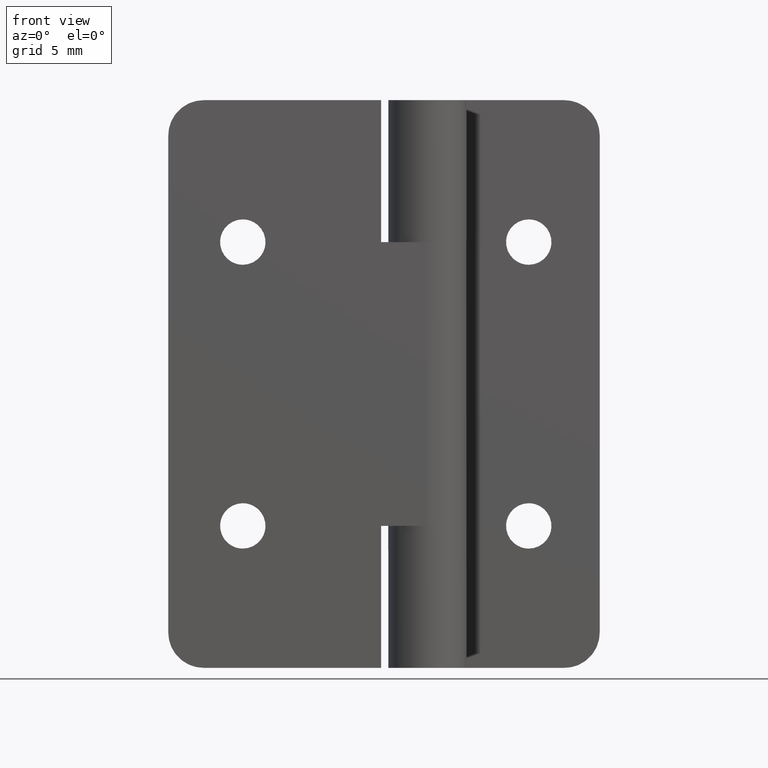
[diagram: clean part render]
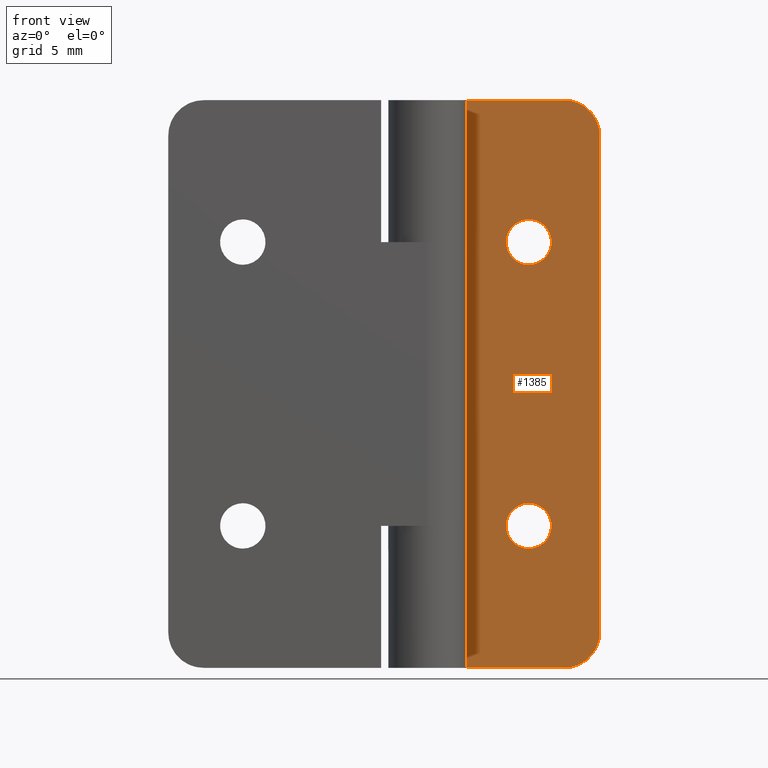
[diagram: same view with one face highlighted and labeled with its STEP entity id]
A machine part, front view. The second image highlights one B-rep face of the part: STEP entity #1385.
In plain terms, the highlighted face is a freeform B-spline surface patch.
Its self-contained STEP definition (entity closure, byte-faithful):
#347=CARTESIAN_POINT('',(8.745067733972197,7.150002000000001,29.874465446825202));
#348=VERTEX_POINT('',#347);
#354=CARTESIAN_POINT('',(7.150000000000000,7.150002000000000,31.600000000000001));
#355=VERTEX_POINT('',#354);
#356=CARTESIAN_POINT('',(8.745067733972197,7.150002000000001,29.874465446825194));
#357=CARTESIAN_POINT('',(8.750000000000000,7.150002000000000,29.937135828777429));
#358=CARTESIAN_POINT('',(8.750000000000000,7.150002000000000,30.0));
#359=CARTESIAN_POINT('',(8.750000000000000,7.150002000000001,31.599999999999994));
#360=CARTESIAN_POINT('',(7.150000000000000,7.150002000000000,31.600000000000001));
#368=(BOUNDED_CURVE()B_SPLINE_CURVE(2,(#356,#357,#358,#359,#360),.UNSPECIFIED.,.F.,.U.)B_SPLINE_CURVE_WITH_KNOTS((3,2,3),(0.736331300630565,0.750000000000000,1.0),.UNSPECIFIED.)CURVE()GEOMETRIC_REPRESENTATION_ITEM()RATIONAL_B_SPLINE_CURVE((0.969723356167219,0.983986122578770,1.0,0.707106781186548,1.0))REPRESENTATION_ITEM(''));
#369=EDGE_CURVE('',#348,#355,#368,.T.);
#371=CARTESIAN_POINT('',(5.554932266027802,7.150001999999999,30.125534553174798));
#372=VERTEX_POINT('',#371);
#373=CARTESIAN_POINT('',(7.150000000000000,7.150002000000000,31.600000000000001));
#374=CARTESIAN_POINT('',(5.670975213365924,7.150001999999999,31.599999999999991));
#375=CARTESIAN_POINT('',(5.554932266027802,7.150001999999999,30.125534553174795));
#383=(BOUNDED_CURVE()B_SPLINE_CURVE(2,(#373,#374,#375),.UNSPECIFIED.,.F.,.U.)B_SPLINE_CURVE_WITH_KNOTS((3,3),(0.0,0.236331300630565),.UNSPECIFIED.)CURVE()GEOMETRIC_REPRESENTATION_ITEM()RATIONAL_B_SPLINE_CURVE((1.0,0.723120658607776,0.969723356167221))REPRESENTATION_ITEM(''));
#384=EDGE_CURVE('',#355,#372,#383,.T.);
#430=CARTESIAN_POINT('',(7.150000000000000,7.150002000000000,28.399999999999999));
#431=VERTEX_POINT('',#430);
#432=CARTESIAN_POINT('',(5.554932266027802,7.150001999999999,30.125534553174795));
#433=CARTESIAN_POINT('',(5.550000000000001,7.150002000000001,30.062864171222561));
#434=CARTESIAN_POINT('',(5.550000000000000,7.150002000000000,30.0));
#435=CARTESIAN_POINT('',(5.550000000000000,7.150002000000001,28.399999999999999));
#436=CARTESIAN_POINT('',(7.150000000000000,7.150002000000000,28.399999999999999));
#444=(BOUNDED_CURVE()B_SPLINE_CURVE(2,(#432,#433,#434,#435,#436),.UNSPECIFIED.,.F.,.U.)B_SPLINE_CURVE_WITH_KNOTS((3,2,3),(0.236331300630565,0.250000000000000,0.500000000000000),.UNSPECIFIED.)CURVE()GEOMETRIC_REPRESENTATION_ITEM()RATIONAL_B_SPLINE_CURVE((0.969723356167221,0.983986122578771,1.0,0.707106781186548,1.0))REPRESENTATION_ITEM(''));
#445=EDGE_CURVE('',#372,#431,#444,.T.);
#447=CARTESIAN_POINT('',(7.150000000000000,7.150002000000000,28.399999999999999));
#448=CARTESIAN_POINT('',(8.629024786634082,7.150002000000000,28.399999999999999));
#449=CARTESIAN_POINT('',(8.745067733972197,7.150002000000001,29.874465446825202));
#457=(BOUNDED_CURVE()B_SPLINE_CURVE(2,(#447,#448,#449),.UNSPECIFIED.,.F.,.U.)B_SPLINE_CURVE_WITH_KNOTS((3,3),(0.500000000000000,0.736331300630566),.UNSPECIFIED.)CURVE()GEOMETRIC_REPRESENTATION_ITEM()RATIONAL_B_SPLINE_CURVE((1.0,0.723120658607776,0.969723356167222))REPRESENTATION_ITEM(''));
#458=EDGE_CURVE('',#431,#348,#457,.T.);
#529=CARTESIAN_POINT('',(8.745067733972199,7.150002000000001,9.874465446825203));
#530=VERTEX_POINT('',#529);
#536=CARTESIAN_POINT('',(7.150000000000000,7.150002000000000,11.600000000000000));
#537=VERTEX_POINT('',#536);
#538=CARTESIAN_POINT('',(8.745067733972199,7.150002000000001,9.874465446825203));
#539=CARTESIAN_POINT('',(8.750000000000000,7.150002000000000,9.937135828777437));
#540=CARTESIAN_POINT('',(8.750000000000000,7.150002000000000,10.0));
#541=CARTESIAN_POINT('',(8.750000000000000,7.150002000000001,11.600000000000001));
#542=CARTESIAN_POINT('',(7.150000000000000,7.150002000000000,11.600000000000000));
#550=(BOUNDED_CURVE()B_SPLINE_CURVE(2,(#538,#539,#540,#541,#542),.UNSPECIFIED.,.F.,.U.)B_SPLINE_CURVE_WITH_KNOTS((3,2,3),(0.736331300630565,0.750000000000000,1.0),.UNSPECIFIED.)CURVE()GEOMETRIC_REPRESENTATION_ITEM()RATIONAL_B_SPLINE_CURVE((0.969723356167220,0.983986122578771,1.0,0.707106781186548,1.0))REPRESENTATION_ITEM(''));
#551=EDGE_CURVE('',#530,#537,#550,.T.);
#553=CARTESIAN_POINT('',(5.554932266027802,7.150001999999999,10.125534553174800));
#554=VERTEX_POINT('',#553);
#555=CARTESIAN_POINT('',(7.150000000000000,7.150002000000000,11.600000000000000));
#556=CARTESIAN_POINT('',(5.670975213365924,7.150001999999999,11.600000000000001));
#557=CARTESIAN_POINT('',(5.554932266027802,7.150001999999999,10.125534553174797));
#565=(BOUNDED_CURVE()B_SPLINE_CURVE(2,(#555,#556,#557),.UNSPECIFIED.,.F.,.U.)B_SPLINE_CURVE_WITH_KNOTS((3,3),(0.0,0.236331300630565),.UNSPECIFIED.)CURVE()GEOMETRIC_REPRESENTATION_ITEM()RATIONAL_B_SPLINE_CURVE((1.0,0.723120658607776,0.969723356167221))REPRESENTATION_ITEM(''));
#566=EDGE_CURVE('',#537,#554,#565,.T.);
#612=CARTESIAN_POINT('',(7.150000000000000,7.150002000000000,8.400000000000000));
#613=VERTEX_POINT('',#612);
#614=CARTESIAN_POINT('',(5.554932266027802,7.150001999999999,10.125534553174797));
#615=CARTESIAN_POINT('',(5.550000000000001,7.150002000000001,10.062864171222563));
#616=CARTESIAN_POINT('',(5.550000000000000,7.150002000000000,10.0));
#617=CARTESIAN_POINT('',(5.550000000000000,7.150002000000001,8.400000000000000));
#618=CARTESIAN_POINT('',(7.150000000000000,7.150002000000000,8.400000000000000));
#626=(BOUNDED_CURVE()B_SPLINE_CURVE(2,(#614,#615,#616,#617,#618),.UNSPECIFIED.,.F.,.U.)B_SPLINE_CURVE_WITH_KNOTS((3,2,3),(0.236331300630565,0.250000000000000,0.500000000000000),.UNSPECIFIED.)CURVE()GEOMETRIC_REPRESENTATION_ITEM()RATIONAL_B_SPLINE_CURVE((0.969723356167221,0.983986122578771,1.0,0.707106781186548,1.0))REPRESENTATION_ITEM(''));
#627=EDGE_CURVE('',#554,#613,#626,.T.);
#629=CARTESIAN_POINT('',(7.150000000000000,7.150002000000000,8.400000000000000));
#630=CARTESIAN_POINT('',(8.629024786634082,7.150002000000000,8.400000000000000));
#631=CARTESIAN_POINT('',(8.745067733972199,7.150002000000001,9.874465446825203));
#639=(BOUNDED_CURVE()B_SPLINE_CURVE(2,(#629,#630,#631),.UNSPECIFIED.,.F.,.U.)B_SPLINE_CURVE_WITH_KNOTS((3,3),(0.500000000000000,0.736331300630566),.UNSPECIFIED.)CURVE()GEOMETRIC_REPRESENTATION_ITEM()RATIONAL_B_SPLINE_CURVE((1.0,0.723120658607776,0.969723356167222))REPRESENTATION_ITEM(''));
#640=EDGE_CURVE('',#613,#530,#639,.T.);
#910=CARTESIAN_POINT('',(12.150000000000000,7.150002000000000,37.500000000000000));
#911=VERTEX_POINT('',#910);
#912=CARTESIAN_POINT('',(9.650000000000000,7.150002000000000,40.0));
#913=VERTEX_POINT('',#912);
#914=CARTESIAN_POINT('',(12.150000000000000,7.150002000000000,37.500000000000000));
#915=CARTESIAN_POINT('',(12.150000000000002,7.150002000000001,39.999999999999993));
#916=CARTESIAN_POINT('',(9.650000000000000,7.150002000000000,40.0));
#924=(BOUNDED_CURVE()B_SPLINE_CURVE(2,(#914,#915,#916),.UNSPECIFIED.,.F.,.U.)CURVE()GEOMETRIC_REPRESENTATION_ITEM()QUASI_UNIFORM_CURVE()RATIONAL_B_SPLINE_CURVE((1.0,0.707106781186548,1.0))REPRESENTATION_ITEM(''));
#925=EDGE_CURVE('',#911,#913,#924,.T.);
#971=CARTESIAN_POINT('',(9.650000000000000,7.150002000000000,0.0));
#972=VERTEX_POINT('',#971);
#973=CARTESIAN_POINT('',(12.150000000000000,7.150002000000000,2.499999999999945));
#974=VERTEX_POINT('',#973);
#975=CARTESIAN_POINT('',(9.650000000000000,7.150002000000000,0.0));
#976=CARTESIAN_POINT('',(12.150000000000002,7.150002000000001,-5.507747E-014));
#977=CARTESIAN_POINT('',(12.150000000000000,7.150002000000000,2.499999999999945));
#985=(BOUNDED_CURVE()B_SPLINE_CURVE(2,(#975,#976,#977),.UNSPECIFIED.,.F.,.U.)CURVE()GEOMETRIC_REPRESENTATION_ITEM()QUASI_UNIFORM_CURVE()RATIONAL_B_SPLINE_CURVE((1.0,0.707106781186548,1.0))REPRESENTATION_ITEM(''));
#986=EDGE_CURVE('',#972,#974,#985,.T.);
#1037=CARTESIAN_POINT('',(2.750000000000000,7.150002000000000,0.0));
#1038=VERTEX_POINT('',#1037);
#1039=CARTESIAN_POINT('',(2.750000000000000,7.150002000000000,0.0));
#1040=CARTESIAN_POINT('',(9.650000000000000,7.150002000000000,0.0));
#1041=QUASI_UNIFORM_CURVE('',1,(#1039,#1040),.UNSPECIFIED.,.F.,.U.);
#1042=EDGE_CURVE('',#1038,#972,#1041,.T.);
#1168=CARTESIAN_POINT('',(2.750000000000000,7.150002000000000,40.0));
#1169=VERTEX_POINT('',#1168);
#1175=CARTESIAN_POINT('',(2.750000000000000,7.150002000000000,40.0));
#1176=CARTESIAN_POINT('',(9.650000000000000,7.150002000000000,40.0));
#1177=QUASI_UNIFORM_CURVE('',1,(#1175,#1176),.UNSPECIFIED.,.F.,.U.);
#1178=EDGE_CURVE('',#1169,#913,#1177,.T.);
#1203=CARTESIAN_POINT('',(2.750000000000000,7.150002000000000,40.0));
#1204=CARTESIAN_POINT('',(2.750000000000000,7.150002000000000,0.0));
#1205=QUASI_UNIFORM_CURVE('',1,(#1203,#1204),.UNSPECIFIED.,.F.,.U.);
#1206=EDGE_CURVE('',#1169,#1038,#1205,.T.);
#1319=CARTESIAN_POINT('',(12.150000000000000,7.150002000000000,37.500000000000000));
#1320=CARTESIAN_POINT('',(12.150000000000000,7.150002000000000,2.499999999999945));
#1321=QUASI_UNIFORM_CURVE('',1,(#1319,#1320),.UNSPECIFIED.,.F.,.U.);
#1322=EDGE_CURVE('',#911,#974,#1321,.T.);
#1360=CARTESIAN_POINT('',(2.280470051802426,7.150002000000000,-1.997999922472239));
#1361=CARTESIAN_POINT('',(2.280470051802426,7.150002000000000,41.998000995355838));
#1362=CARTESIAN_POINT('',(12.619529527984820,7.150002000000000,-1.997999922472239));
#1363=CARTESIAN_POINT('',(12.619529527984820,7.150002000000000,41.998000995355838));
#1364=B_SPLINE_SURFACE_WITH_KNOTS('',1,1,((#1360,#1362),(#1361,#1363)),.UNSPECIFIED.,.F.,.F.,.U.,(2,2),(2,2),(0.0,43.996000917828077),(0.0,10.339059476182401),.UNSPECIFIED.);
#1365=ORIENTED_EDGE('',*,*,#1042,.T.);
#1366=ORIENTED_EDGE('',*,*,#986,.T.);
#1367=ORIENTED_EDGE('',*,*,#1322,.F.);
#1368=ORIENTED_EDGE('',*,*,#925,.T.);
#1369=ORIENTED_EDGE('',*,*,#1178,.F.);
#1370=ORIENTED_EDGE('',*,*,#1206,.T.);
#1371=EDGE_LOOP('',(#1365,#1366,#1367,#1368,#1369,#1370));
#1372=FACE_OUTER_BOUND('',#1371,.T.);
#1373=ORIENTED_EDGE('',*,*,#640,.F.);
#1374=ORIENTED_EDGE('',*,*,#627,.F.);
#1375=ORIENTED_EDGE('',*,*,#566,.F.);
#1376=ORIENTED_EDGE('',*,*,#551,.F.);
#1377=EDGE_LOOP('',(#1373,#1374,#1375,#1376));
#1378=FACE_BOUND('',#1377,.T.);
#1379=ORIENTED_EDGE('',*,*,#458,.F.);
#1380=ORIENTED_EDGE('',*,*,#445,.F.);
#1381=ORIENTED_EDGE('',*,*,#384,.F.);
#1382=ORIENTED_EDGE('',*,*,#369,.F.);
#1383=EDGE_LOOP('',(#1379,#1380,#1381,#1382));
#1384=FACE_BOUND('',#1383,.T.);
#1385=ADVANCED_FACE('',(#1372,#1378,#1384),#1364,.F.);